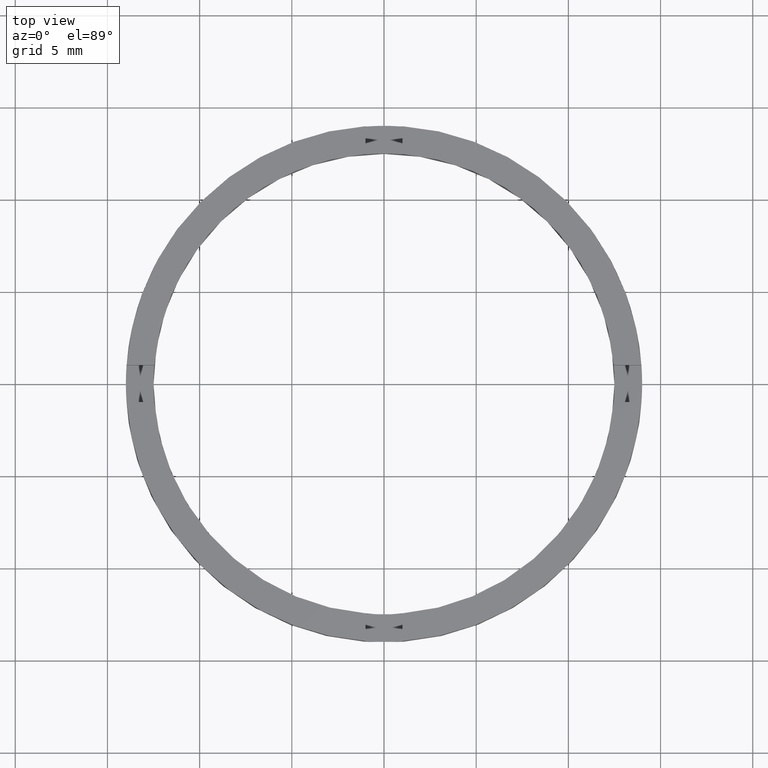
[diagram: clean part render]
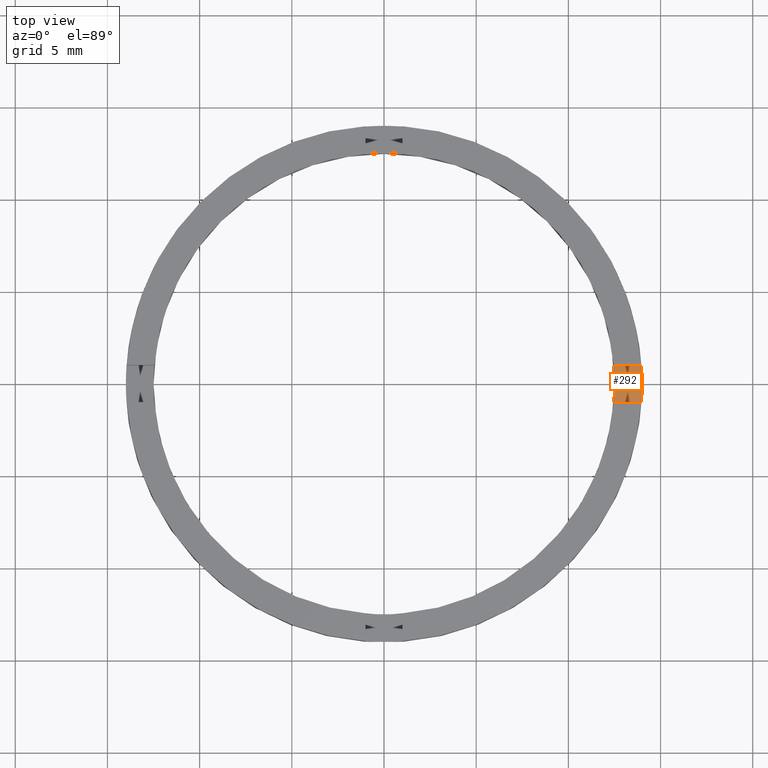
[diagram: same view with one face highlighted and labeled with its STEP entity id]
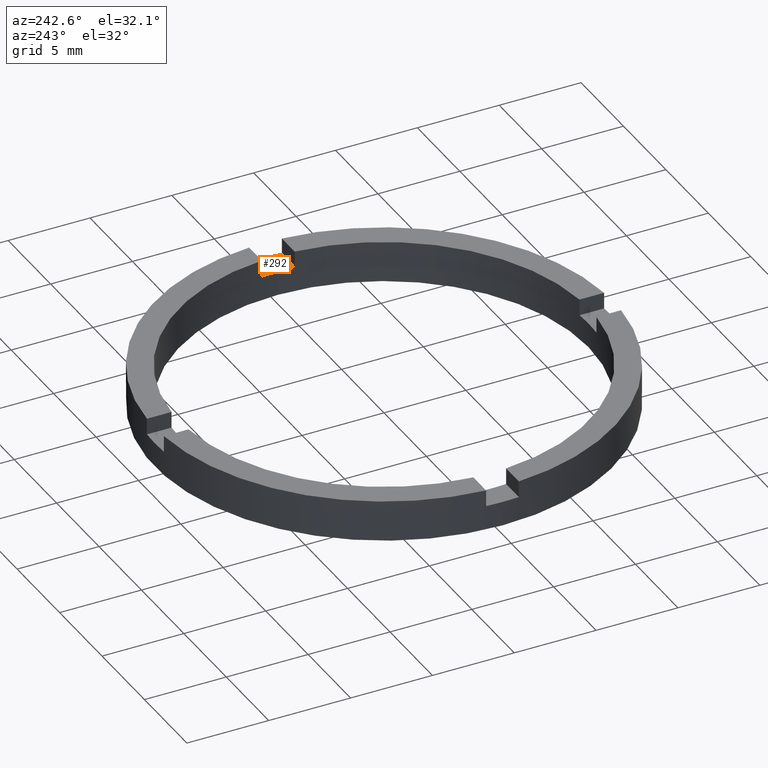
[diagram: same view with one face highlighted and labeled with its STEP entity id]
A machine part, top view. The second image highlights one B-rep face of the part: STEP entity #292.
A second angle (auxiliary view) of the same face is appended — the face is thin or edge-on in the first view.
In plain terms, the highlighted planar face has unit normal (0, 0, 1).
Its self-contained STEP definition (entity closure, byte-faithful):
#24 = EDGE_CURVE ( 'NONE', #386, #441, #661, .T. ) ;
#36 = DIRECTION ( 'NONE',  ( 0.000000000000000000, 0.000000000000000000, 1.000000000000000000 ) ) ;
#40 = CARTESIAN_POINT ( 'NONE',  ( 14.00000000000000000, 1.714505518806294638E-15, 1.500000000000000000 ) ) ;
#48 = DIRECTION ( 'NONE',  ( 0.000000000000000000, 0.000000000000000000, 1.000000000000000000 ) ) ;
#66 = DIRECTION ( 'NONE',  ( 1.000000000000000000, 0.000000000000000000, 0.000000000000000000 ) ) ;
#84 = PLANE ( 'NONE',  #561 ) ;
#132 = AXIS2_PLACEMENT_3D ( 'NONE', #704, #36, #66 ) ;
#136 = ORIENTED_EDGE ( 'NONE', *, *, #736, .T. ) ;
#143 = ORIENTED_EDGE ( 'NONE', *, *, #385, .T. ) ;
#148 = VERTEX_POINT ( 'NONE', #584 ) ;
#160 = ORIENTED_EDGE ( 'NONE', *, *, #272, .T. ) ;
#172 = DIRECTION ( 'NONE',  ( 0.000000000000000000, 0.000000000000000000, 1.000000000000000000 ) ) ;
#174 = CIRCLE ( 'NONE', #260, 12.50000000000000000 ) ;
#182 = VECTOR ( 'NONE', #183, 1000.000000000000000 ) ;
#183 = DIRECTION ( 'NONE',  ( 1.000000000000000000, 4.336808689942017736E-17, 0.000000000000000000 ) ) ;
#189 = VECTOR ( 'NONE', #642, 1000.000000000000000 ) ;
#197 = VERTEX_POINT ( 'NONE', #308 ) ;
#228 = CARTESIAN_POINT ( 'NONE',  ( 0.000000000000000000, 0.000000000000000000, 1.500000000000000000 ) ) ;
#230 = CIRCLE ( 'NONE', #286, 14.00000000000000000 ) ;
#258 = EDGE_CURVE ( 'NONE', #197, #427, #746, .T. ) ;
#260 = AXIS2_PLACEMENT_3D ( 'NONE', #344, #48, #726 ) ;
#272 = EDGE_CURVE ( 'NONE', #441, #612, #230, .T. ) ;
#286 = AXIS2_PLACEMENT_3D ( 'NONE', #228, #172, #406 ) ;
#292 = ADVANCED_FACE ( 'NONE', ( #466 ), #84, .T. ) ;
#308 = CARTESIAN_POINT ( 'NONE',  ( 12.45993579437710075, -1.000000000000159872, 1.500000000000000000 ) ) ;
#310 = CARTESIAN_POINT ( 'NONE',  ( 0.000000000000000000, 0.000000000000000000, 1.500000000000000000 ) ) ;
#333 = CARTESIAN_POINT ( 'NONE',  ( 13.96424004376895311, 0.9999999999998404610, 1.500000000000000000 ) ) ;
#339 = CARTESIAN_POINT ( 'NONE',  ( 12.50000000000000000, 1.530808498934191521E-15, 1.500000000000000000 ) ) ;
#344 = CARTESIAN_POINT ( 'NONE',  ( 0.000000000000000000, 0.000000000000000000, 1.500000000000000000 ) ) ;
#345 = DIRECTION ( 'NONE',  ( 1.000000000000000000, 0.000000000000000000, -0.000000000000000000 ) ) ;
#385 = EDGE_CURVE ( 'NONE', #197, #386, #451, .T. ) ;
#386 = VERTEX_POINT ( 'NONE', #577 ) ;
#397 = CARTESIAN_POINT ( 'NONE',  ( 3.999999999999994671, 0.9999999999998400169, 1.500000000000000000 ) ) ;
#406 = DIRECTION ( 'NONE',  ( 1.000000000000000000, 0.000000000000000000, 0.000000000000000000 ) ) ;
#416 = CARTESIAN_POINT ( 'NONE',  ( 0.000000000000000000, 0.000000000000000000, 1.500000000000000000 ) ) ;
#427 = VERTEX_POINT ( 'NONE', #339 ) ;
#441 = VERTEX_POINT ( 'NONE', #40 ) ;
#446 = EDGE_LOOP ( 'NONE', ( #611, #160, #136, #649, #740, #143 ) ) ;
#451 = LINE ( 'NONE', #712, #182 ) ;
#459 = LINE ( 'NONE', #397, #189 ) ;
#466 = FACE_OUTER_BOUND ( 'NONE', #446, .T. ) ;
#492 = DIRECTION ( 'NONE',  ( 0.000000000000000000, 0.000000000000000000, 1.000000000000000000 ) ) ;
#542 = DIRECTION ( 'NONE',  ( 0.000000000000000000, 0.000000000000000000, 1.000000000000000000 ) ) ;
#561 = AXIS2_PLACEMENT_3D ( 'NONE', #310, #542, #345 ) ;
#577 = CARTESIAN_POINT ( 'NONE',  ( 13.96424004376893002, -1.000000000000159650, 1.500000000000000000 ) ) ;
#584 = CARTESIAN_POINT ( 'NONE',  ( 12.45993579437712739, 0.9999999999998402389, 1.500000000000000000 ) ) ;
#595 = EDGE_CURVE ( 'NONE', #427, #148, #174, .T. ) ;
#596 = AXIS2_PLACEMENT_3D ( 'NONE', #416, #492, #709 ) ;
#611 = ORIENTED_EDGE ( 'NONE', *, *, #24, .T. ) ;
#612 = VERTEX_POINT ( 'NONE', #333 ) ;
#642 = DIRECTION ( 'NONE',  ( -1.000000000000000000, -4.336808689942017736E-17, -0.000000000000000000 ) ) ;
#649 = ORIENTED_EDGE ( 'NONE', *, *, #595, .F. ) ;
#661 = CIRCLE ( 'NONE', #596, 14.00000000000000000 ) ;
#704 = CARTESIAN_POINT ( 'NONE',  ( 0.000000000000000000, 0.000000000000000000, 1.500000000000000000 ) ) ;
#709 = DIRECTION ( 'NONE',  ( 1.000000000000000000, 0.000000000000000000, 0.000000000000000000 ) ) ;
#712 = CARTESIAN_POINT ( 'NONE',  ( 3.999999999999994671, -1.000000000000160094, 1.500000000000000000 ) ) ;
#726 = DIRECTION ( 'NONE',  ( 1.000000000000000000, 0.000000000000000000, 0.000000000000000000 ) ) ;
#736 = EDGE_CURVE ( 'NONE', #612, #148, #459, .T. ) ;
#740 = ORIENTED_EDGE ( 'NONE', *, *, #258, .F. ) ;
#746 = CIRCLE ( 'NONE', #132, 12.50000000000000000 ) ;